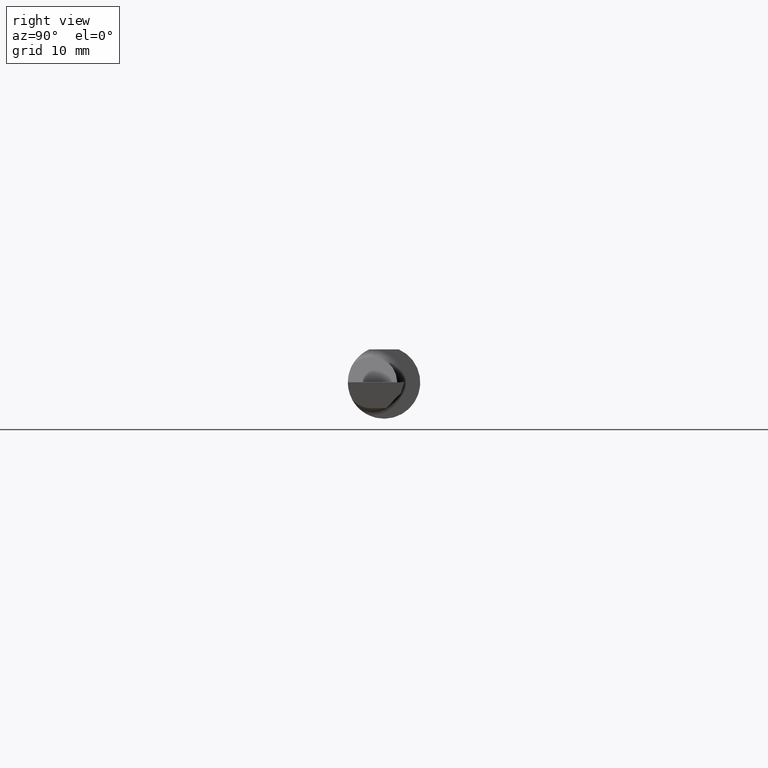
[diagram: clean part render]
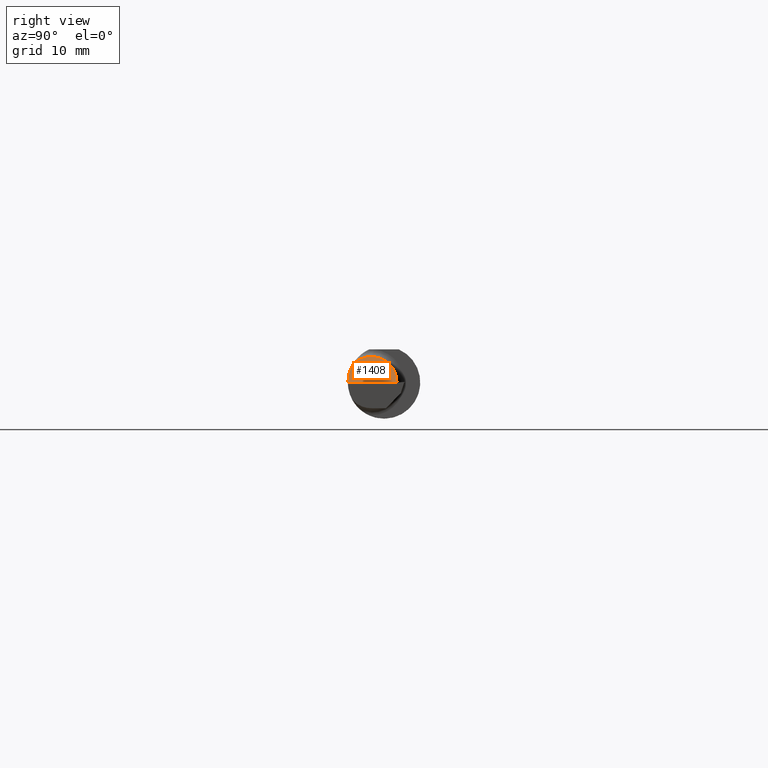
[diagram: same view with one face highlighted and labeled with its STEP entity id]
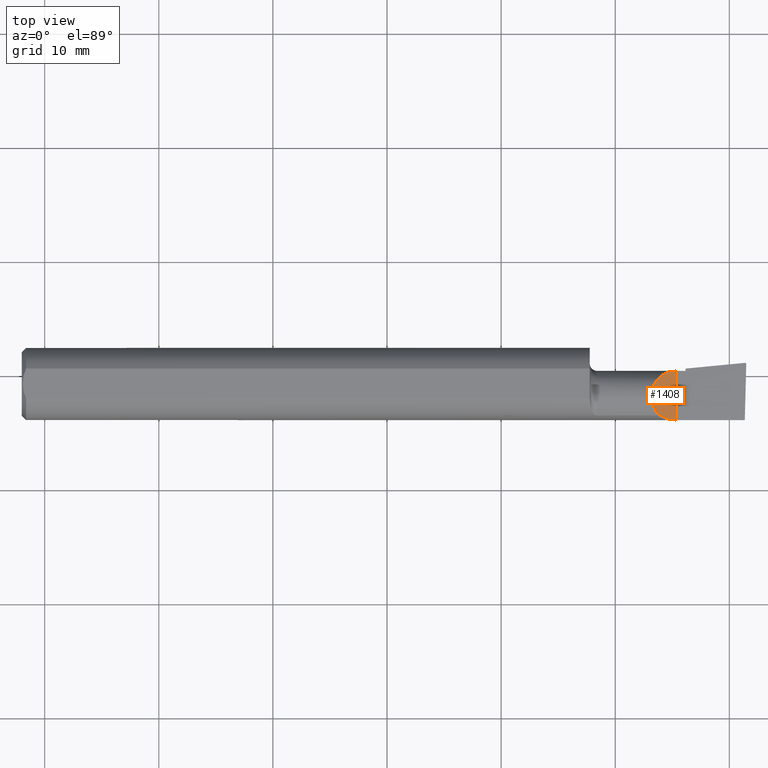
[diagram: same view with one face highlighted and labeled with its STEP entity id]
A machine part, right view. The second image highlights one B-rep face of the part: STEP entity #1408.
A second angle (top view) of the same face is appended — the face is thin or edge-on in the first view.
In plain terms, the highlighted planar face has unit normal (-0.7071, 0, -0.7071).
Its self-contained STEP definition (entity closure, byte-faithful):
#48 = FACE_OUTER_BOUND ( 'NONE', #843, .T. ) ;
#73 =( BOUNDED_CURVE ( )  B_SPLINE_CURVE ( 3, ( #1433, #833, #362, #1071 ),
 .UNSPECIFIED., .F., .F. ) 
 B_SPLINE_CURVE_WITH_KNOTS ( ( 4, 4 ),
 ( 0.000000000000000000, 0.8269532615970597300 ),
 .UNSPECIFIED. ) 
 CURVE ( )  GEOMETRIC_REPRESENTATION_ITEM ( )  RATIONAL_B_SPLINE_CURVE ( ( 1.000000000000000000, 0.9438196436970136549, 0.9438196436970136549, 1.000000000000000000 ) ) 
 REPRESENTATION_ITEM ( '' )  );
#143 = AXIS2_PLACEMENT_3D ( 'NONE', #986, #964, #866 ) ;
#171 =( BOUNDED_CURVE ( )  B_SPLINE_CURVE ( 3, ( #892, #523, #314, #1353 ),
 .UNSPECIFIED., .F., .F. ) 
 B_SPLINE_CURVE_WITH_KNOTS ( ( 4, 4 ),
 ( 4.715192348093415475, 5.216111826723994760 ),
 .UNSPECIFIED. ) 
 CURVE ( )  GEOMETRIC_REPRESENTATION_ITEM ( )  RATIONAL_B_SPLINE_CURVE ( ( 1.000000000000000000, 0.9791990519953637229, 0.9791990519953637229, 1.000000000000000000 ) ) 
 REPRESENTATION_ITEM ( '' )  );
#172 = LINE ( 'NONE', #851, #1340 ) ;
#181 = CARTESIAN_POINT ( 'NONE',  ( 2.200086239175845559, -0.1093425883694413292, 0.06026376082415463298 ) ) ;
#221 = EDGE_CURVE ( 'NONE', #701, #1464, #73, .T. ) ;
#287 = PLANE ( 'NONE',  #143 ) ;
#314 = CARTESIAN_POINT ( 'NONE',  ( 2.218537028253239285, -0.1195116721323033065, 0.04181297174676079642 ) ) ;
#362 = CARTESIAN_POINT ( 'NONE',  ( 2.181498916115400810, -0.09223924859979829027, 0.07885108388459921569 ) ) ;
#372 = EDGE_CURVE ( 'NONE', #896, #1464, #171, .T. ) ;
#388 = DIRECTION ( 'NONE',  ( 0.000000000000000000, -1.000000000000000000, 0.000000000000000000 ) ) ;
#400 = ORIENTED_EDGE ( 'NONE', *, *, #372, .F. ) ;
#438 =( BOUNDED_CURVE ( )  B_SPLINE_CURVE ( 3, ( #897, #1402, #693, #651 ),
 .UNSPECIFIED., .F., .F. ) 
 B_SPLINE_CURVE_WITH_KNOTS ( ( 4, 4 ),
 ( 4.716321574790802273, 6.283185307179586232 ),
 .UNSPECIFIED. ) 
 CURVE ( )  GEOMETRIC_REPRESENTATION_ITEM ( )  RATIONAL_B_SPLINE_CURVE ( ( 1.000000000000000000, 0.8056638636166326695, 0.8056638636166326695, 1.000000000000000000 ) ) 
 REPRESENTATION_ITEM ( '' )  );
#523 = CARTESIAN_POINT ( 'NONE',  ( 2.238932527582364607, -0.1247904493837344864, 0.02141747241763547471 ) ) ;
#651 = CARTESIAN_POINT ( 'NONE',  ( 2.171349999999999891, -0.04385000000000000009, 0.08899999999999999578 ) ) ;
#693 = CARTESIAN_POINT ( 'NONE',  ( 2.171350000000000335, 0.008122574649203021663, 0.08900000000000000966 ) ) ;
#701 = VERTEX_POINT ( 'NONE', #1053 ) ;
#764 = ORIENTED_EDGE ( 'NONE', *, *, #1478, .T. ) ;
#780 = VERTEX_POINT ( 'NONE', #1061 ) ;
#833 = CARTESIAN_POINT ( 'NONE',  ( 2.171349999999999891, -0.06910891545235434141, 0.08900000000000000966 ) ) ;
#843 = EDGE_LOOP ( 'NONE', ( #1011, #764, #1397, #400 ) ) ;
#851 = CARTESIAN_POINT ( 'NONE',  ( 2.260000000000000231, 0.1499999999999999667, 0.0003499999999999638925 ) ) ;
#866 = DIRECTION ( 'NONE',  ( -0.7071067811865474617, 0.000000000000000000, 0.7071067811865474617 ) ) ;
#892 = CARTESIAN_POINT ( 'NONE',  ( 2.260000000000000231, -0.1248495094103296982, 0.0003499999999999383053 ) ) ;
#896 = VERTEX_POINT ( 'NONE', #1225 ) ;
#897 = CARTESIAN_POINT ( 'NONE',  ( 2.260000000000000231, 0.04514931179509204529, 0.0003499999999999638925 ) ) ;
#964 = DIRECTION ( 'NONE',  ( -0.7071067811865475727, 0.000000000000000000, -0.7071067811865475727 ) ) ;
#986 = CARTESIAN_POINT ( 'NONE',  ( 2.146500000000000075, 0.1000000000000000056, 0.1138500000000000068 ) ) ;
#1011 = ORIENTED_EDGE ( 'NONE', *, *, #1424, .F. ) ;
#1053 = CARTESIAN_POINT ( 'NONE',  ( 2.171349999999999891, -0.04385000000000000009, 0.08899999999999999578 ) ) ;
#1061 = CARTESIAN_POINT ( 'NONE',  ( 2.260000000000000231, 0.04514931179509204529, 0.0003499999999999638925 ) ) ;
#1071 = CARTESIAN_POINT ( 'NONE',  ( 2.200086239175845559, -0.1093425883694413292, 0.06026376082415463298 ) ) ;
#1225 = CARTESIAN_POINT ( 'NONE',  ( 2.260000000000000231, -0.1248495094103296982, 0.0003499999999999383053 ) ) ;
#1340 = VECTOR ( 'NONE', #388, 39.37007874015748143 ) ;
#1353 = CARTESIAN_POINT ( 'NONE',  ( 2.200086239175845559, -0.1093425883694413292, 0.06026376082415463298 ) ) ;
#1397 = ORIENTED_EDGE ( 'NONE', *, *, #221, .T. ) ;
#1402 = CARTESIAN_POINT ( 'NONE',  ( 2.208027827235976570, 0.04494492526557266471, 0.05232217276402370554 ) ) ;
#1408 = ADVANCED_FACE ( 'NONE', ( #48 ), #287, .F. ) ;
#1424 = EDGE_CURVE ( 'NONE', #780, #896, #172, .T. ) ;
#1433 = CARTESIAN_POINT ( 'NONE',  ( 2.171349999999999891, -0.04385000000000000009, 0.08899999999999999578 ) ) ;
#1464 = VERTEX_POINT ( 'NONE', #181 ) ;
#1478 = EDGE_CURVE ( 'NONE', #780, #701, #438, .T. ) ;